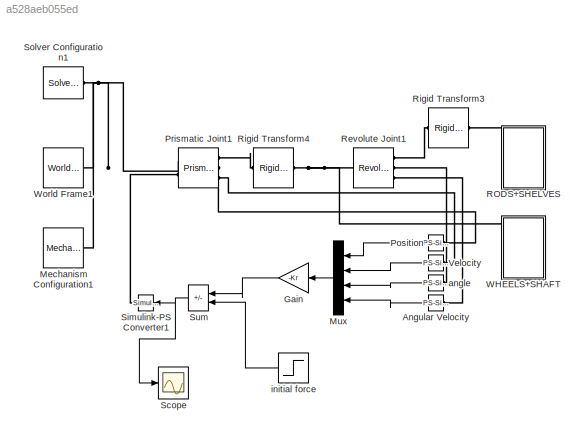
MODEL slx_a528aeb055ed
KIND model
CONFIG AbsTol = 1e-3
CONFIG EnableMultiTasking = on
CONFIG FixedStep = auto
CONFIG MaxStep = auto
CONFIG MinStep = auto
CONFIG RelTol = 1e-3
CONFIG SampleTimeConstraint = Unconstrained
CONFIG SolverName = VariableStepAuto
CONFIG StartTime = 0.0
CONFIG StopTime = 10
BLOCK [Reference] Angular Velocity  REF=nesl_utility/PS-Simulink
Converter
  NameLocation = top
  Ports = [0, 1, 0, 0, 0, 1]
  SourceBlock = nesl_utility/PS-Simulink\nConverter
  SourceProductBaseCode = PW,SS
  SourceType = PS-Simulink\nConverter
BLOCK [Gain] Gain
  Gain = -Kr
  Multiplication = Matrix(K*u)
  NameLocation = top
BLOCK [Reference] Mechanism Configuration1  REF=sm_lib/Utilities/Mechanism
Configuration
  Ports = [0, 0, 0, 0, 0, 0, 1]
  SourceBlock = sm_lib/Utilities/Mechanism\nConfiguration
  SourceProductBaseCode = MS
  SourceType = Mechanism\nConfiguration
BLOCK [Mux] Mux
  DisplayOption = bar
  NameLocation = top
  Ports = [4, 1]
BLOCK [Reference] Position  REF=nesl_utility/PS-Simulink
Converter
  NameLocation = top
  Ports = [0, 1, 0, 0, 0, 1]
  SourceBlock = nesl_utility/PS-Simulink\nConverter
  SourceProductBaseCode = PW,SS
  SourceType = PS-Simulink\nConverter
BLOCK [Reference] Prismatic Joint1  REF=sm_lib/Joints/Prismatic
Joint
  Ports = [0, 0, 0, 0, 0, 2, 3]
  SourceBlock = sm_lib/Joints/Prismatic\nJoint
  SourceProductBaseCode = MS
  SourceType = Prismatic\nJoint
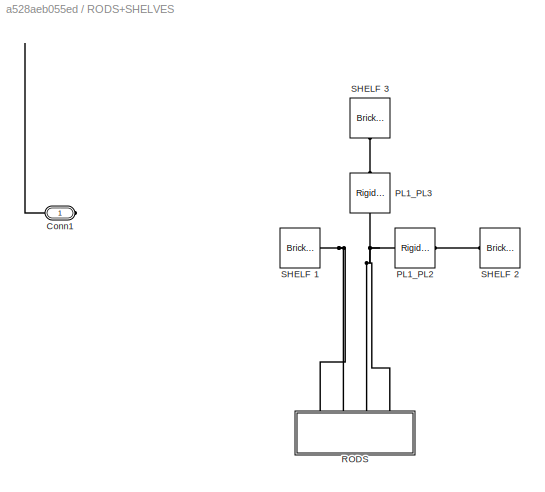
BLOCK [SubSystem] RODS+SHELVES
  Ports = [0, 0, 0, 0, 0, 1]
  RequestExecContextInheritance = off
BLOCK [PMIOPort] RODS+SHELVES/Conn1
  Side = Left
BLOCK [Reference] RODS+SHELVES/PL1_PL2   REF=sm_lib/Frames and
Transforms/Rigid
Transform
  Ports = [0, 0, 0, 0, 0, 1, 1]
  SourceBlock = sm_lib/Frames and\nTransforms/Rigid\nTransform
  SourceProductBaseCode = MS
  SourceType = Rigid\nTransform
BLOCK [Reference] RODS+SHELVES/PL1_PL3   REF=sm_lib/Frames and
Transforms/Rigid
Transform
  NameLocation = right
  Ports = [0, 0, 0, 0, 0, 1, 1]
  SourceBlock = sm_lib/Frames and\nTransforms/Rigid\nTransform
  SourceProductBaseCode = MS
  SourceType = Rigid\nTransform
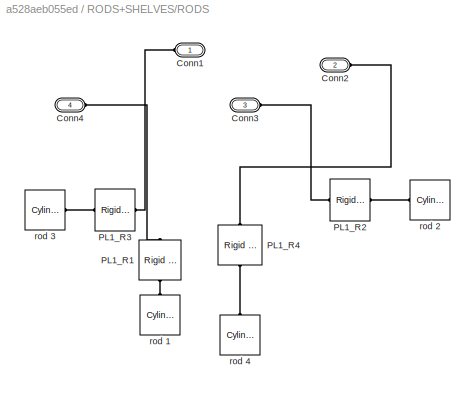
BLOCK [SubSystem] RODS+SHELVES/RODS
  NameLocation = left
  Ports = [0, 0, 0, 0, 0, 4]
  RequestExecContextInheritance = off
BLOCK [PMIOPort] RODS+SHELVES/RODS/Conn1
  Side = Left
BLOCK [PMIOPort] RODS+SHELVES/RODS/Conn2
  Port = 2
  Side = Left
BLOCK [PMIOPort] RODS+SHELVES/RODS/Conn3
  Port = 3
  Side = Left
BLOCK [PMIOPort] RODS+SHELVES/RODS/Conn4
  Port = 4
  Side = Left
BLOCK [Reference] RODS+SHELVES/RODS/PL1_R1  REF=sm_lib/Frames and
Transforms/Rigid
Transform
  NameLocation = left
  Ports = [0, 0, 0, 0, 0, 1, 1]
  SourceBlock = sm_lib/Frames and\nTransforms/Rigid\nTransform
  SourceProductBaseCode = MS
  SourceType = Rigid\nTransform
BLOCK [Reference] RODS+SHELVES/RODS/PL1_R2  REF=sm_lib/Frames and
Transforms/Rigid
Transform
  Ports = [0, 0, 0, 0, 0, 1, 1]
  SourceBlock = sm_lib/Frames and\nTransforms/Rigid\nTransform
  SourceProductBaseCode = MS
  SourceType = Rigid\nTransform
BLOCK [Reference] RODS+SHELVES/RODS/PL1_R3  REF=sm_lib/Frames and
Transforms/Rigid
Transform
  NameLocation = top
  Ports = [0, 0, 0, 0, 0, 1, 1]
  SourceBlock = sm_lib/Frames and\nTransforms/Rigid\nTransform
  SourceProductBaseCode = MS
  SourceType = Rigid\nTransform
BLOCK [Reference] RODS+SHELVES/RODS/PL1_R4  REF=sm_lib/Frames and
Transforms/Rigid
Transform
  NameLocation = left
  Ports = [0, 0, 0, 0, 0, 1, 1]
  SourceBlock = sm_lib/Frames and\nTransforms/Rigid\nTransform
  SourceProductBaseCode = MS
  SourceType = Rigid\nTransform
BLOCK [Reference] RODS+SHELVES/RODS/rod 1  REF=sm_lib/Body Elements/Cylindrical Solid
  NameLocation = right
  Ports = [0, 0, 0, 0, 0, 0, 1]
  SourceBlock = sm_lib/Body Elements/Cylindrical Solid
  SourceProductBaseCode = MS
  SourceType = Cylindrical Solid
BLOCK [Reference] RODS+SHELVES/RODS/rod 2  REF=sm_lib/Body Elements/Cylindrical Solid
  NameLocation = top
  Ports = [0, 0, 0, 0, 0, 0, 1]
  SourceBlock = sm_lib/Body Elements/Cylindrical Solid
  SourceProductBaseCode = MS
  SourceType = Cylindrical Solid
BLOCK [Reference] RODS+SHELVES/RODS/rod 3  REF=sm_lib/Body Elements/Cylindrical Solid
  Ports = [0, 0, 0, 0, 0, 0, 1]
  SourceBlock = sm_lib/Body Elements/Cylindrical Solid
  SourceProductBaseCode = MS
  SourceType = Cylindrical Solid
BLOCK [Reference] RODS+SHELVES/RODS/rod 4  REF=sm_lib/Body Elements/Cylindrical Solid
  NameLocation = right
  Ports = [0, 0, 0, 0, 0, 0, 1]
  SourceBlock = sm_lib/Body Elements/Cylindrical Solid
  SourceProductBaseCode = MS
  SourceType = Cylindrical Solid
BLOCK [Reference] RODS+SHELVES/SHELF 1  REF=sm_lib/Body Elements/Brick Solid
  Ports = [0, 0, 0, 0, 0, 0, 1]
  SourceBlock = sm_lib/Body Elements/Brick Solid
  SourceProductBaseCode = MS
  SourceType = Brick Solid
BLOCK [Reference] RODS+SHELVES/SHELF 2   REF=sm_lib/Body Elements/Brick Solid
  NameLocation = top
  Ports = [0, 0, 0, 0, 0, 0, 1]
  SourceBlock = sm_lib/Body Elements/Brick Solid
  SourceProductBaseCode = MS
  SourceType = Brick Solid
BLOCK [Reference] RODS+SHELVES/SHELF 3  REF=sm_lib/Body Elements/Brick Solid
  NameLocation = left
  Ports = [0, 0, 0, 0, 0, 0, 1]
  SourceBlock = sm_lib/Body Elements/Brick Solid
  SourceProductBaseCode = MS
  SourceType = Brick Solid
BLOCK [Reference] Revolute Joint1  REF=sm_lib/Joints/Revolute Joint
  Ports = [0, 0, 0, 0, 0, 1, 3]
  SourceBlock = sm_lib/Joints/Revolute Joint
  SourceProductBaseCode = MS
  SourceType = Revolute Joint
BLOCK [Reference] Rigid Transform3  REF=sm_lib/Frames and
Transforms/Rigid
Transform
  Ports = [0, 0, 0, 0, 0, 1, 1]
  SourceBlock = sm_lib/Frames and\nTransforms/Rigid\nTransform
  SourceProductBaseCode = MS
  SourceType = Rigid\nTransform
BLOCK [Reference] Rigid Transform4  REF=sm_lib/Frames and
Transforms/Rigid
Transform
  Ports = [0, 0, 0, 0, 0, 1, 1]
  SourceBlock = sm_lib/Frames and\nTransforms/Rigid\nTransform
  SourceProductBaseCode = MS
  SourceType = Rigid\nTransform
BLOCK [Scope] Scope
  Floating = off
  NumInputPorts = 1
  Ports = [1]
  ScopeSpecificationString = Simulink.scopes.TimeScopeBlockCfg('CurrentConfiguration', extmgr.ConfigurationSet(extmgr.Configuration('Core','General UI',true),extmgr.Configuration('Core','Source UI',true),extmgr.Configuration('Sources','WiredSimulink',true),extmgr.Configuration('Visuals','Time Domain',true,'SerializedDisplays',{struct('MinYLimReal','-20028.49065','MaxYLimReal','80256.41581','YLabelReal','','MinYLimMag','   0.0...<+1478ch>
BLOCK [Reference] Simulink-PS Converter1  REF=nesl_utility/Simulink-PS
Converter
  NameLocation = top
  Ports = [1, 0, 0, 0, 0, 0, 1]
  SourceBlock = nesl_utility/Simulink-PS\nConverter
  SourceProductBaseCode = SS
  SourceType = Simulink-PS\nConverter
BLOCK [Reference] Solver Configuration1  REF=nesl_utility/Solver
Configuration
  Ports = [0, 0, 0, 0, 0, 0, 1]
  SourceBlock = nesl_utility/Solver\nConfiguration
  SourceProductBaseCode = SS
  SourceType = Solver\nConfiguration
BLOCK [Sum] Sum
  IconShape = rectangular
  Inputs = |+-
  NameLocation = top
  Ports = [2, 1]
BLOCK [Reference] Velocity  REF=nesl_utility/PS-Simulink
Converter
  NameLocation = top
  Ports = [0, 1, 0, 0, 0, 1]
  SourceBlock = nesl_utility/PS-Simulink\nConverter
  SourceProductBaseCode = PW,SS
  SourceType = PS-Simulink\nConverter
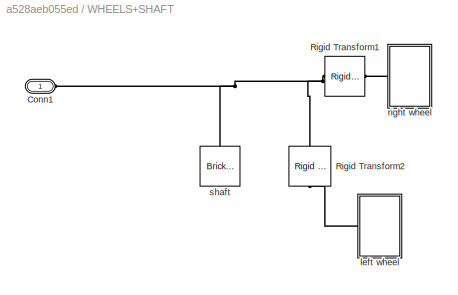
BLOCK [SubSystem] WHEELS+SHAFT
  Ports = [0, 0, 0, 0, 0, 1]
  RequestExecContextInheritance = off
BLOCK [PMIOPort] WHEELS+SHAFT/Conn1
  Side = Left
BLOCK [Reference] WHEELS+SHAFT/Rigid Transform1  REF=sm_lib/Frames and
Transforms/Rigid
Transform
  Ports = [0, 0, 0, 0, 0, 1, 1]
  SourceBlock = sm_lib/Frames and\nTransforms/Rigid\nTransform
  SourceProductBaseCode = MS
  SourceType = Rigid\nTransform
BLOCK [Reference] WHEELS+SHAFT/Rigid Transform2  REF=sm_lib/Frames and
Transforms/Rigid
Transform
  NameLocation = left
  Ports = [0, 0, 0, 0, 0, 1, 1]
  SourceBlock = sm_lib/Frames and\nTransforms/Rigid\nTransform
  SourceProductBaseCode = MS
  SourceType = Rigid\nTransform
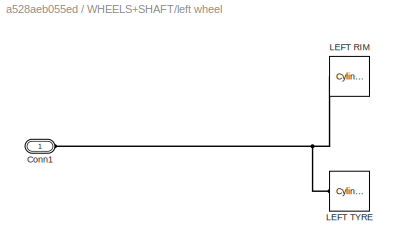
BLOCK [SubSystem] WHEELS+SHAFT/left wheel 
  Ports = [0, 0, 0, 0, 0, 1]
  RequestExecContextInheritance = off
BLOCK [PMIOPort] WHEELS+SHAFT/left wheel /Conn1
  Side = Left
BLOCK [Reference] WHEELS+SHAFT/left wheel /LEFT RIM  REF=sm_lib/Body Elements/Cylindrical Solid
  NameLocation = top
  Ports = [0, 0, 0, 0, 0, 0, 1]
  SourceBlock = sm_lib/Body Elements/Cylindrical Solid
  SourceProductBaseCode = MS
  SourceType = Cylindrical Solid
BLOCK [Reference] WHEELS+SHAFT/left wheel /LEFT TYRE   REF=sm_lib/Body Elements/Cylindrical Solid
  NameLocation = top
  Ports = [0, 0, 0, 0, 0, 0, 1]
  SourceBlock = sm_lib/Body Elements/Cylindrical Solid
  SourceProductBaseCode = MS
  SourceType = Cylindrical Solid
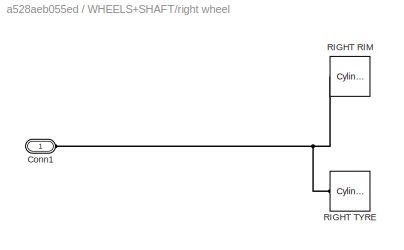
BLOCK [SubSystem] WHEELS+SHAFT/right wheel 
  Ports = [0, 0, 0, 0, 0, 1]
  RequestExecContextInheritance = off
BLOCK [PMIOPort] WHEELS+SHAFT/right wheel /Conn1
  Side = Left
BLOCK [Reference] WHEELS+SHAFT/right wheel /RIGHT RIM  REF=sm_lib/Body Elements/Cylindrical Solid
  NameLocation = top
  Ports = [0, 0, 0, 0, 0, 0, 1]
  SourceBlock = sm_lib/Body Elements/Cylindrical Solid
  SourceProductBaseCode = MS
  SourceType = Cylindrical Solid
BLOCK [Reference] WHEELS+SHAFT/right wheel /RIGHT TYRE   REF=sm_lib/Body Elements/Cylindrical Solid
  NameLocation = top
  Ports = [0, 0, 0, 0, 0, 0, 1]
  SourceBlock = sm_lib/Body Elements/Cylindrical Solid
  SourceProductBaseCode = MS
  SourceType = Cylindrical Solid
BLOCK [Reference] WHEELS+SHAFT/shaft   REF=sm_lib/Body Elements/Brick Solid
  NameLocation = right
  Ports = [0, 0, 0, 0, 0, 0, 1]
  SourceBlock = sm_lib/Body Elements/Brick Solid
  SourceProductBaseCode = MS
  SourceType = Brick Solid
BLOCK [Reference] World Frame1  REF=sm_lib/Frames and
Transforms/World Frame
  Ports = [0, 0, 0, 0, 0, 0, 1]
  SourceBlock = sm_lib/Frames and\nTransforms/World Frame
  SourceProductBaseCode = MS
  SourceType = World Frame
BLOCK [Reference] angle  REF=nesl_utility/PS-Simulink
Converter
  NameLocation = top
  Ports = [0, 1, 0, 0, 0, 1]
  SourceBlock = nesl_utility/PS-Simulink\nConverter
  SourceProductBaseCode = PW,SS
  SourceType = PS-Simulink\nConverter
BLOCK [Step] initial force
  After = 0
  Before = 2550
  NameLocation = top
  SampleTime = 0
  Time = 0.01
LINE Angular Velocity:1 -> Mux:4
LINE Gain:1 -> Sum:1
LINE Mux:1 -> Gain:1
LINE Position:1 -> Mux:1
NET Sum:1 -> Scope:1, Simulink-PS Converter1:1
LINE Velocity:1 -> Mux:2
LINE angle:1 -> Mux:3
LINE initial force:1 -> Sum:2
PLINE Angular Velocity:LConn1 -- Revolute Joint1:RConn3
PNET net1: Mechanism Configuration1:RConn1 -- Prismatic Joint1:LConn1 -- Solver Configuration1:RConn1 -- World Frame1:RConn1
PLINE Position:LConn1 -- Prismatic Joint1:RConn2
PLINE Prismatic Joint1:LConn2 -- Simulink-PS Converter1:RConn1
PLINE Prismatic Joint1:RConn1 -- Rigid Transform4:LConn1
PLINE Prismatic Joint1:RConn3 -- Velocity:LConn1
PNET net2: RODS+SHELVES/Conn1:RConn1 -- RODS+SHELVES/PL1_PL2 :LConn1 -- RODS+SHELVES/PL1_PL3 :LConn1 -- RODS+SHELVES/RODS:LConn1 -- RODS+SHELVES/RODS:LConn2 -- RODS+SHELVES/RODS:LConn3 -- RODS+SHELVES/RODS:LConn4 -- RODS+SHELVES/SHELF 1:RConn1
PLINE RODS+SHELVES/PL1_PL2 :RConn1 -- RODS+SHELVES/SHELF 2 :RConn1
PLINE RODS+SHELVES/PL1_PL3 :RConn1 -- RODS+SHELVES/SHELF 3:RConn1
PLINE RODS+SHELVES/RODS/Conn1:RConn1 -- RODS+SHELVES/RODS/PL1_R3:LConn1
PLINE RODS+SHELVES/RODS/Conn2:RConn1 -- RODS+SHELVES/RODS/PL1_R4:LConn1
PLINE RODS+SHELVES/RODS/Conn3:RConn1 -- RODS+SHELVES/RODS/PL1_R2:LConn1
PLINE RODS+SHELVES/RODS/Conn4:RConn1 -- RODS+SHELVES/RODS/PL1_R1:LConn1
PLINE RODS+SHELVES/RODS/PL1_R1:RConn1 -- RODS+SHELVES/RODS/rod 1:RConn1
PLINE RODS+SHELVES/RODS/PL1_R2:RConn1 -- RODS+SHELVES/RODS/rod 2:RConn1
PLINE RODS+SHELVES/RODS/PL1_R3:RConn1 -- RODS+SHELVES/RODS/rod 3:RConn1
PLINE RODS+SHELVES/RODS/PL1_R4:RConn1 -- RODS+SHELVES/RODS/rod 4:RConn1
PLINE RODS+SHELVES:LConn1 -- Rigid Transform3:RConn1
PNET net3: Revolute Joint1:LConn1 -- Rigid Transform4:RConn1 -- WHEELS+SHAFT:LConn1
PLINE Revolute Joint1:RConn1 -- Rigid Transform3:LConn1
PLINE Revolute Joint1:RConn2 -- angle:LConn1
PNET net4: WHEELS+SHAFT/Conn1:RConn1 -- WHEELS+SHAFT/Rigid Transform1:LConn1 -- WHEELS+SHAFT/Rigid Transform2:LConn1 -- WHEELS+SHAFT/shaft :RConn1
PLINE WHEELS+SHAFT/Rigid Transform1:RConn1 -- WHEELS+SHAFT/right wheel :LConn1
PLINE WHEELS+SHAFT/Rigid Transform2:RConn1 -- WHEELS+SHAFT/left wheel :LConn1
PNET net5: WHEELS+SHAFT/left wheel /Conn1:RConn1 -- WHEELS+SHAFT/left wheel /LEFT RIM:RConn1 -- WHEELS+SHAFT/left wheel /LEFT TYRE :RConn1
PNET net6: WHEELS+SHAFT/right wheel /Conn1:RConn1 -- WHEELS+SHAFT/right wheel /RIGHT RIM:RConn1 -- WHEELS+SHAFT/right wheel /RIGHT TYRE :RConn1
note: NET lines group one-source signal fan-out (src -> all destinations, sorted); 1:1 wires keep LINE; PNET lines group multi-terminal physical nets as a canonical sorted terminal list (undirected conserving connections); 2-terminal nets keep the pairwise PLINE form
